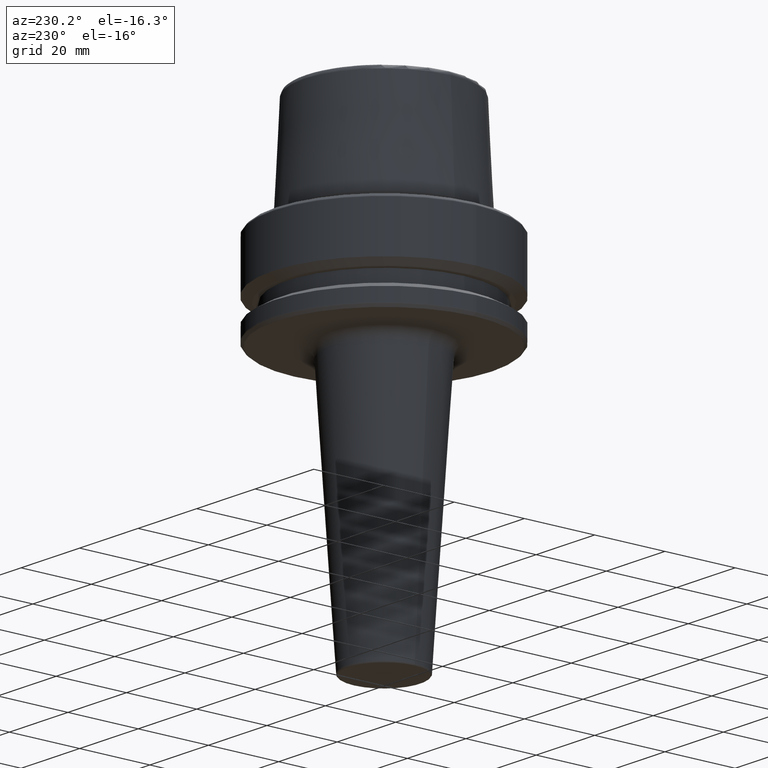
[diagram: clean part render]
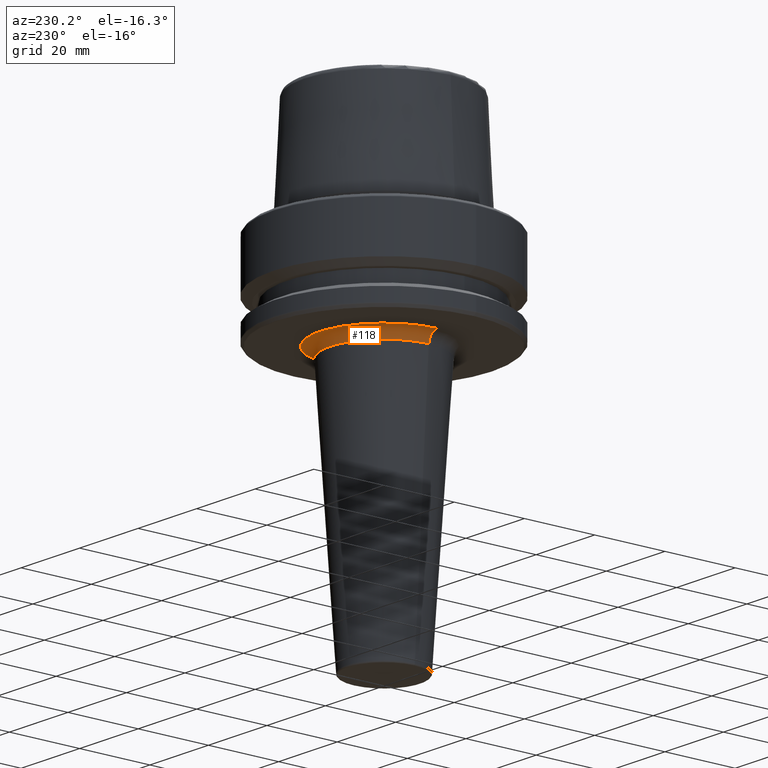
[diagram: same view with one face highlighted and labeled with its STEP entity id]
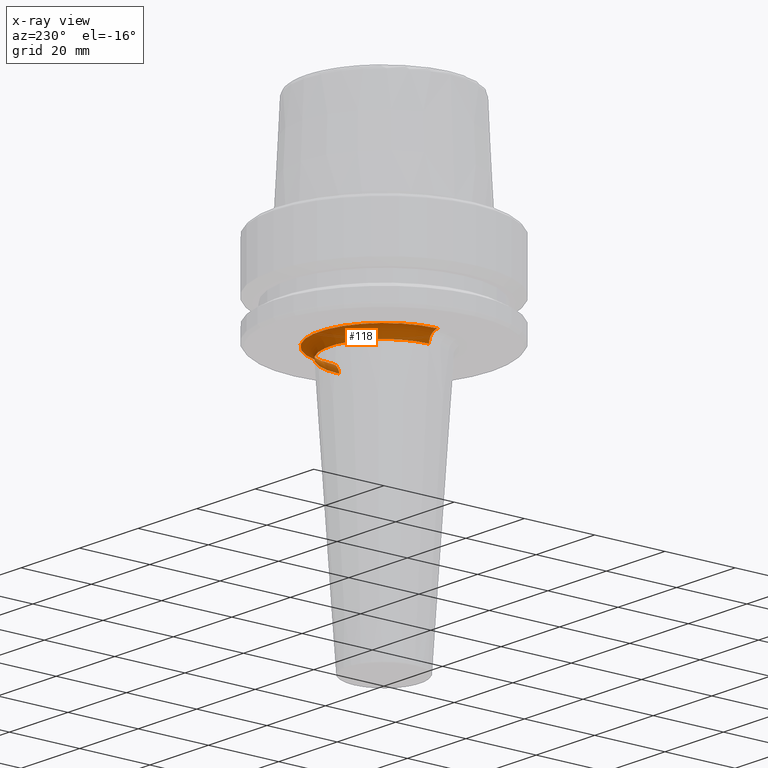
[diagram: x-ray of the same camera — body ghosted, the highlighted face saturated]
A machine part, auxiliary view. The second image highlights one B-rep face of the part: STEP entity #118.
The next image is the same camera in x-ray: the body ghosted, the highlighted face saturated — about 4% of this face is hidden behind the body in this view.
In plain terms, the highlighted toroidal blend (fillet) surface has major radius 18.3067 mm and minor (blend) radius 3 mm.
Its self-contained STEP definition (entity closure, byte-faithful):
#44 = EDGE_LOOP ( 'NONE', ( #1175, #930, #236, #500 ) ) ;
#49 = CIRCLE ( 'NONE', #612, 3.000000000000002700 ) ;
#51 = AXIS2_PLACEMENT_3D ( 'NONE', #999, #214, #470 ) ;
#118 = ADVANCED_FACE ( 'NONE', ( #494 ), #995, .F. ) ;
#122 = DIRECTION ( 'NONE',  ( 1.224646799147353200E-016, 1.000000000000000000, 0.0000000000000000000 ) ) ;
#214 = DIRECTION ( 'NONE',  ( -0.0000000000000000000, -0.0000000000000000000, 1.000000000000000000 ) ) ;
#236 = ORIENTED_EDGE ( 'NONE', *, *, #706, .T. ) ;
#284 = DIRECTION ( 'NONE',  ( 0.0000000000000000000, 0.0000000000000000000, -1.000000000000000000 ) ) ;
#294 = CARTESIAN_POINT ( 'NONE',  ( 18.30665927567457300, 0.0000000000000000000, -26.00000000000000700 ) ) ;
#376 = VERTEX_POINT ( 'NONE', #529 ) ;
#408 = AXIS2_PLACEMENT_3D ( 'NONE', #804, #122, #708 ) ;
#442 = CARTESIAN_POINT ( 'NONE',  ( 0.0000000000000000000, 0.0000000000000000000, -28.80044296842868300 ) ) ;
#470 = DIRECTION ( 'NONE',  ( 1.000000000000000000, 0.0000000000000000000, 0.0000000000000000000 ) ) ;
#494 = FACE_OUTER_BOUND ( 'NONE', #44, .T. ) ;
#500 = ORIENTED_EDGE ( 'NONE', *, *, #801, .F. ) ;
#502 = CIRCLE ( 'NONE', #1189, 15.31330380210474800 ) ;
#529 = CARTESIAN_POINT ( 'NONE',  ( -15.31330380210474800, 1.875338848561857700E-015, -28.80044296842868300 ) ) ;
#572 = DIRECTION ( 'NONE',  ( -0.0000000000000000000, -0.0000000000000000000, 1.000000000000000000 ) ) ;
#575 = VERTEX_POINT ( 'NONE', #294 ) ;
#592 = CIRCLE ( 'NONE', #408, 2.999999999999999100 ) ;
#612 = AXIS2_PLACEMENT_3D ( 'NONE', #1050, #961, #284 ) ;
#667 = EDGE_CURVE ( 'NONE', #715, #376, #592, .T. ) ;
#705 = DIRECTION ( 'NONE',  ( -0.0000000000000000000, -0.0000000000000000000, -1.000000000000000000 ) ) ;
#706 = EDGE_CURVE ( 'NONE', #575, #1126, #49, .T. ) ;
#708 = DIRECTION ( 'NONE',  ( -1.000000000000000000, 1.224646799147353500E-016, 0.0000000000000000000 ) ) ;
#715 = VERTEX_POINT ( 'NONE', #1005 ) ;
#733 = DIRECTION ( 'NONE',  ( 1.000000000000000000, 0.0000000000000000000, 0.0000000000000000000 ) ) ;
#801 = EDGE_CURVE ( 'NONE', #376, #1126, #502, .T. ) ;
#804 = CARTESIAN_POINT ( 'NONE',  ( -18.30665927567457300, 2.241919168503607100E-015, -29.00000000000000400 ) ) ;
#858 = AXIS2_PLACEMENT_3D ( 'NONE', #1206, #572, #733 ) ;
#930 = ORIENTED_EDGE ( 'NONE', *, *, #947, .F. ) ;
#947 = EDGE_CURVE ( 'NONE', #575, #715, #1071, .T. ) ;
#961 = DIRECTION ( 'NONE',  ( 0.0000000000000000000, -1.000000000000000000, 0.0000000000000000000 ) ) ;
#995 = TOROIDAL_SURFACE ( 'NONE', #51, 18.30665927567457300, 3.000000000000000000 ) ;
#999 = CARTESIAN_POINT ( 'NONE',  ( 0.0000000000000000000, 0.0000000000000000000, -29.00000000000000400 ) ) ;
#1005 = CARTESIAN_POINT ( 'NONE',  ( -18.30665927567457300, 2.241919168503607100E-015, -26.00000000000000700 ) ) ;
#1050 = CARTESIAN_POINT ( 'NONE',  ( 18.30665927567457300, 0.0000000000000000000, -29.00000000000000400 ) ) ;
#1067 = CARTESIAN_POINT ( 'NONE',  ( 15.31330380210474800, 0.0000000000000000000, -28.80044296842868300 ) ) ;
#1071 = CIRCLE ( 'NONE', #858, 18.30665927567457300 ) ;
#1079 = DIRECTION ( 'NONE',  ( 1.000000000000000000, 0.0000000000000000000, 0.0000000000000000000 ) ) ;
#1126 = VERTEX_POINT ( 'NONE', #1067 ) ;
#1175 = ORIENTED_EDGE ( 'NONE', *, *, #667, .F. ) ;
#1189 = AXIS2_PLACEMENT_3D ( 'NONE', #442, #705, #1079 ) ;
#1206 = CARTESIAN_POINT ( 'NONE',  ( 0.0000000000000000000, 0.0000000000000000000, -26.00000000000000700 ) ) ;